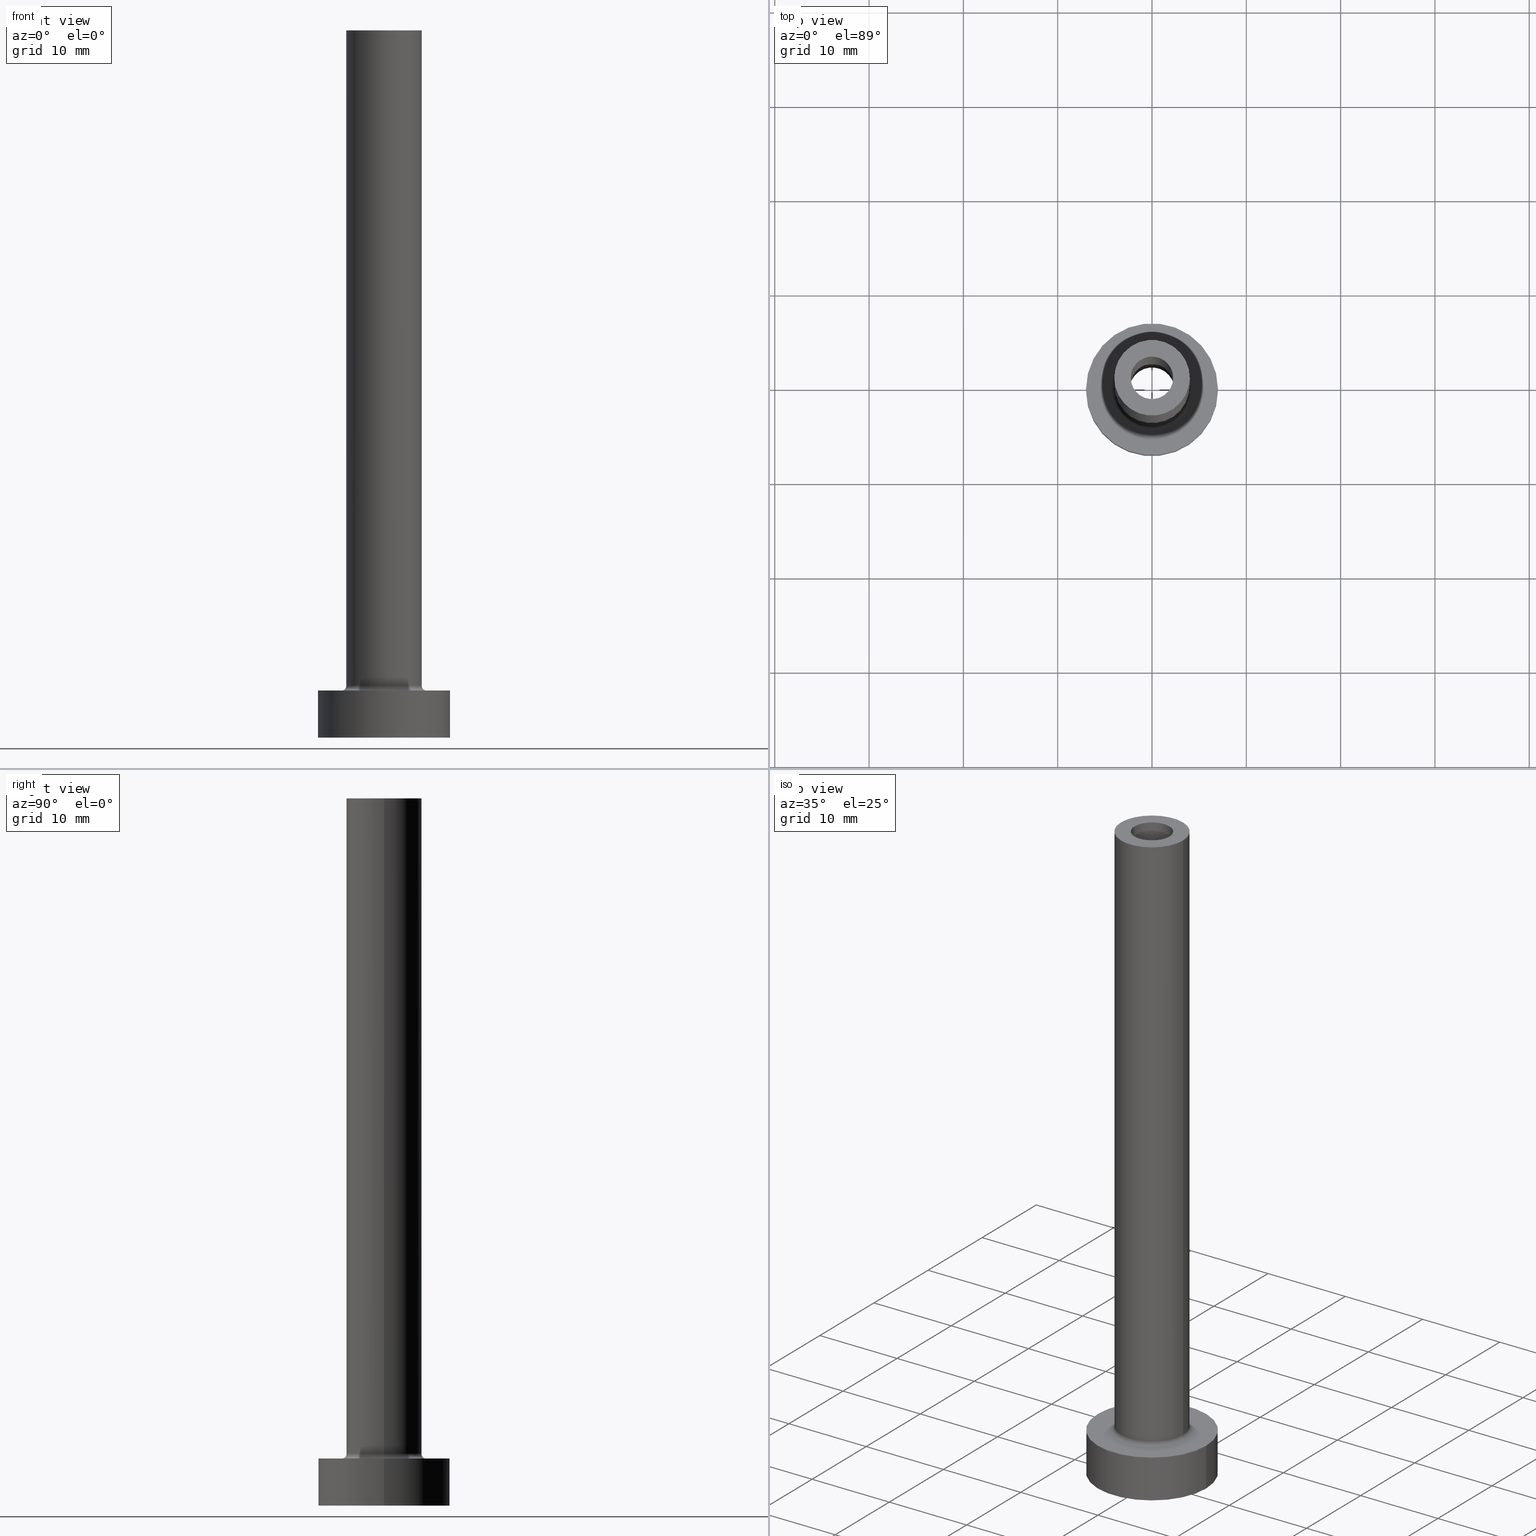
[diagram: canonical four-view strip — front | top / right | iso, engineering-drawing reading convention]
A machine part, canonical four-view strip (front | top / right | iso — engineering-drawing reading convention). The complete STEP part file that produces these views, byte-faithful:
ISO-10303-21;
HEADER;
FILE_DESCRIPTION (( 'STEP AP203' ),
    '1' );
FILE_NAME ('1f15.STEP',
    '2023-02-13T17:24:20',
    ( '' ),
    ( '' ),
    'SwSTEP 2.0',
    'SolidWorks 2019',
    '' );
FILE_SCHEMA (( 'CONFIG_CONTROL_DESIGN' ));
ENDSEC;

DATA;
#1 = DIRECTION ( 'NONE',  ( -1.000000000000000000, 0.000000000000000000, 0.000000000000000000 ) ) ;
#2 = CIRCLE ( 'NONE', #56, 4.500000000000000888 ) ;
#3 = ADVANCED_FACE ( 'NONE', ( #166 ), #420, .T. ) ;
#4 = AXIS2_PLACEMENT_3D ( 'NONE', #213, #167, #218 ) ;
#5 = EDGE_CURVE ( 'NONE', #383, #303, #319, .T. ) ;
#6 = AXIS2_PLACEMENT_3D ( 'NONE', #418, #35, #245 ) ;
#7 = VECTOR ( 'NONE', #99, 1000.000000000000000 ) ;
#8 = CARTESIAN_POINT ( 'NONE',  ( 0.000000000000000000, 0.000000000000000000, 75.00000000000001421 ) ) ;
#9 = DIRECTION ( 'NONE',  ( 0.000000000000000000, 0.000000000000000000, -1.000000000000000000 ) ) ;
#10 = PERSON_AND_ORGANIZATION ( #121, #96 ) ;
#11 = ADVANCED_FACE ( 'NONE', ( #162 ), #365, .F. ) ;
#12 = CARTESIAN_POINT ( 'NONE',  ( -4.500000000000000888, 5.510910596163089556E-16, 5.500000000000005329 ) ) ;
#13 = ORIENTED_EDGE ( 'NONE', *, *, #413, .T. ) ;
#14 = ORIENTED_EDGE ( 'NONE', *, *, #88, .F. ) ;
#15 = CIRCLE ( 'NONE', #217, 2.250000000000000000 ) ;
#16 = APPROVAL_STATUS ( 'not_yet_approved' ) ;
#17 = PLANE ( 'NONE',  #283 ) ;
#18 = ORIENTED_EDGE ( 'NONE', *, *, #169, .F. ) ;
#19 = DIRECTION ( 'NONE',  ( 1.000000000000000000, 0.000000000000000000, 0.000000000000000000 ) ) ;
#20 = APPLICATION_PROTOCOL_DEFINITION ( 'international standard', 'config_control_design', 1994, #91 ) ;
#21 = VECTOR ( 'NONE', #453, 1000.000000000000000 ) ;
#22 = VERTEX_POINT ( 'NONE', #377 ) ;
#23 = PERSON_AND_ORGANIZATION_ROLE ( 'design_owner' ) ;
#24 = CIRCLE ( 'NONE', #287, 4.000000000000000000 ) ;
#25 = ADVANCED_FACE ( 'NONE', ( #386 ), #372, .F. ) ;
#26 = CYLINDRICAL_SURFACE ( 'NONE', #437, 4.000000000000000000 ) ;
#27 = DIRECTION ( 'NONE',  ( -1.000000000000000000, 0.000000000000000000, 0.000000000000000000 ) ) ;
#28 = AXIS2_PLACEMENT_3D ( 'NONE', #267, #129, #231 ) ;
#29 = DIRECTION ( 'NONE',  ( 0.000000000000000000, 0.000000000000000000, 1.000000000000000000 ) ) ;
#30 = FACE_OUTER_BOUND ( 'NONE', #90, .T. ) ;
#31 = DIRECTION ( 'NONE',  ( 1.000000000000000000, 0.000000000000000000, 0.000000000000000000 ) ) ;
#32 = DIRECTION ( 'NONE',  ( 1.000000000000000000, 0.000000000000000000, 0.000000000000000000 ) ) ;
#33 = DATE_TIME_ROLE ( 'classification_date' ) ;
#34 = AXIS2_PLACEMENT_3D ( 'NONE', #12, #110, #426 ) ;
#35 = DIRECTION ( 'NONE',  ( 0.000000000000000000, 0.000000000000000000, 1.000000000000000000 ) ) ;
#36 = EDGE_LOOP ( 'NONE', ( #316, #13 ) ) ;
#37 = PERSON_AND_ORGANIZATION ( #121, #96 ) ;
#38 = EDGE_CURVE ( 'NONE', #336, #335, #199, .T. ) ;
#39 = CARTESIAN_POINT ( 'NONE',  ( -2.250000000000000000, 0.000000000000000000, 75.00000000000001421 ) ) ;
#40 = AXIS2_PLACEMENT_3D ( 'NONE', #82, #449, #446 ) ;
#41 = AXIS2_PLACEMENT_3D ( 'NONE', #439, #258, #184 ) ;
#42 = VERTEX_POINT ( 'NONE', #39 ) ;
#43 = EDGE_CURVE ( 'NONE', #42, #103, #15, .T. ) ;
#44 = DIRECTION ( 'NONE',  ( 0.000000000000000000, 0.000000000000000000, 1.000000000000000000 ) ) ;
#45 = CYLINDRICAL_SURFACE ( 'NONE', #81, 4.000000000000000000 ) ;
#46 = PERSON_AND_ORGANIZATION_ROLE ( 'classification_officer' ) ;
#47 = FACE_OUTER_BOUND ( 'NONE', #292, .T. ) ;
#48 = CIRCLE ( 'NONE', #205, 7.000000000000000000 ) ;
#49 = ORIENTED_EDGE ( 'NONE', *, *, #341, .F. ) ;
#50 = EDGE_CURVE ( 'NONE', #302, #445, #24, .T. ) ;
#51 = ORIENTED_EDGE ( 'NONE', *, *, #348, .F. ) ;
#52 = AXIS2_PLACEMENT_3D ( 'NONE', #97, #339, #86 ) ;
#53 = PERSON_AND_ORGANIZATION_ROLE ( 'creator' ) ;
#54 = ORIENTED_EDGE ( 'NONE', *, *, #195, .F. ) ;
#55 = VECTOR ( 'NONE', #415, 1000.000000000000000 ) ;
#56 = AXIS2_PLACEMENT_3D ( 'NONE', #270, #235, #347 ) ;
#57 = VERTEX_POINT ( 'NONE', #424 ) ;
#58 = CC_DESIGN_PERSON_AND_ORGANIZATION_ASSIGNMENT ( #307, #436, ( #375 ) ) ;
#59 = CARTESIAN_POINT ( 'NONE',  ( 0.000000000000000000, 0.000000000000000000, 5.000000000000000000 ) ) ;
#60 = CARTESIAN_POINT ( 'NONE',  ( 2.250000000000000000, 2.755455298081543792E-16, 75.00000000000001421 ) ) ;
#61 = VECTOR ( 'NONE', #410, 1000.000000000000000 ) ;
#62 = VECTOR ( 'NONE', #331, 1000.000000000000000 ) ;
#63 = ADVANCED_FACE ( 'NONE', ( #351, #346 ), #286, .F. ) ;
#64 = CARTESIAN_POINT ( 'NONE',  ( 0.000000000000000000, 0.000000000000000000, 0.000000000000000000 ) ) ;
#65 = SHAPE_DEFINITION_REPRESENTATION ( #243, #360 ) ;
#66 = LINE ( 'NONE', #427, #7 ) ;
#67 = DIRECTION ( 'NONE',  ( 1.000000000000000000, 0.000000000000000000, 0.000000000000000000 ) ) ;
#68 = DIRECTION ( 'NONE',  ( 0.000000000000000000, 0.000000000000000000, -1.000000000000000000 ) ) ;
#69 = ORIENTED_EDGE ( 'NONE', *, *, #329, .F. ) ;
#70 = EDGE_CURVE ( 'NONE', #445, #302, #261, .T. ) ;
#71 = COORDINATED_UNIVERSAL_TIME_OFFSET ( 1, 0, .AHEAD. ) ;
#72 = AXIS2_PLACEMENT_3D ( 'NONE', #164, #306, #122 ) ;
#73 = APPROVAL_ROLE ( '' ) ;
#74 = VECTOR ( 'NONE', #380, 1000.000000000000000 ) ;
#75 = FACE_OUTER_BOUND ( 'NONE', #308, .T. ) ;
#76 = ORIENTED_EDGE ( 'NONE', *, *, #268, .T. ) ;
#77 = PERSON_AND_ORGANIZATION_ROLE ( 'design_supplier' ) ;
#78 = LINE ( 'NONE', #109, #74 ) ;
#79 = APPROVAL_DATE_TIME ( #406, #395 ) ;
#80 = CARTESIAN_POINT ( 'NONE',  ( 2.399999999999999911, 2.939152317953647106E-16, 30.00000000000001421 ) ) ;
#81 = AXIS2_PLACEMENT_3D ( 'NONE', #125, #285, #201 ) ;
#82 = CARTESIAN_POINT ( 'NONE',  ( 0.000000000000000000, 0.000000000000000000, 36.78822509939086416 ) ) ;
#83 = ADVANCED_FACE ( 'NONE', ( #412 ), #45, .T. ) ;
#84 = CC_DESIGN_DATE_AND_TIME_ASSIGNMENT ( #359, #33, ( #87 ) ) ;
#85 = VERTEX_POINT ( 'NONE', #392 ) ;
#86 = DIRECTION ( 'NONE',  ( 1.000000000000000000, 0.000000000000000000, 0.000000000000000000 ) ) ;
#87 = SECURITY_CLASSIFICATION ( '', '', #222 ) ;
#88 = EDGE_CURVE ( 'NONE', #303, #383, #293, .T. ) ;
#89 = CARTESIAN_POINT ( 'NONE',  ( 0.000000000000000000, 0.000000000000000000, 30.00000000000001421 ) ) ;
#90 = EDGE_LOOP ( 'NONE', ( #194, #361 ) ) ;
#91 = APPLICATION_CONTEXT ( 'configuration controlled 3d designs of mechanical parts and assemblies' ) ;
#92 = CARTESIAN_POINT ( 'NONE',  ( 7.000000000000000000, 8.572527594031473190E-16, 5.000000000000000000 ) ) ;
#93 = FACE_OUTER_BOUND ( 'NONE', #343, .T. ) ;
#94 = EDGE_LOOP ( 'NONE', ( #414, #269, #187, #179 ) ) ;
#95 = AXIS2_PLACEMENT_3D ( 'NONE', #322, #441, #224 ) ;
#96 = ORGANIZATION ( 'NEUR�EN�', 'NEUR�EN�', '' ) ;
#97 = CARTESIAN_POINT ( 'NONE',  ( 0.000000000000000000, 0.000000000000000000, 5.500000000000005329 ) ) ;
#98 = EDGE_CURVE ( 'NONE', #402, #225, #196, .T. ) ;
#99 = DIRECTION ( 'NONE',  ( 0.000000000000000000, 0.000000000000000000, -1.000000000000000000 ) ) ;
#100 = DIRECTION ( 'NONE',  ( 0.000000000000000000, 0.000000000000000000, 1.000000000000000000 ) ) ;
#101 = CC_DESIGN_APPROVAL ( #291, ( #87 ) ) ;
#102 = LINE ( 'NONE', #254, #62 ) ;
#103 = VERTEX_POINT ( 'NONE', #60 ) ;
#104 = AXIS2_PLACEMENT_3D ( 'NONE', #165, #390, #175 ) ;
#105 = CC_DESIGN_APPROVAL ( #296, ( #178 ) ) ;
#106 = CARTESIAN_POINT ( 'NONE',  ( 2.399999999999999911, 2.939152317953647106E-16, 36.78822509939086416 ) ) ;
#107 = MANIFOLD_SOLID_BREP ( 'Odebrat vysunut�m4', #461 ) ;
#108 = APPROVAL_DATE_TIME ( #145, #296 ) ;
#109 = CARTESIAN_POINT ( 'NONE',  ( 4.000000000000000000, 4.898587196589412829E-16, 75.00000000000001421 ) ) ;
#110 = DIRECTION ( 'NONE',  ( 1.224646799147353207E-16, 1.000000000000000000, -0.000000000000000000 ) ) ;
#111 = ADVANCED_FACE ( 'NONE', ( #93 ), #389, .T. ) ;
#112 = COORDINATED_UNIVERSAL_TIME_OFFSET ( 1, 0, .AHEAD. ) ;
#113 = FACE_OUTER_BOUND ( 'NONE', #456, .T. ) ;
#114 = ORIENTED_EDGE ( 'NONE', *, *, #173, .F. ) ;
#115 = PERSON_AND_ORGANIZATION ( #121, #96 ) ;
#116 = APPROVAL_ROLE ( '' ) ;
#117 = APPROVAL_PERSON_ORGANIZATION ( #259, #395, #116 ) ;
#118 = DIRECTION ( 'NONE',  ( 0.000000000000000000, 0.000000000000000000, 1.000000000000000000 ) ) ;
#119 = APPROVAL_PERSON_ORGANIZATION ( #312, #296, #448 ) ;
#120 = ORIENTED_EDGE ( 'NONE', *, *, #433, .T. ) ;
#121 = PERSON ( 'NEUR�EN�', 'NEUR�EN�', 'NEUR�EN�', ('NEUR�EN�'), ('NEUR�EN�'), ('NEUR�EN�') ) ;
#122 = DIRECTION ( 'NONE',  ( 1.000000000000000000, 0.000000000000000000, 0.000000000000000000 ) ) ;
#123 = COORDINATED_UNIVERSAL_TIME_OFFSET ( 1, 0, .AHEAD. ) ;
#124 = ORIENTED_EDGE ( 'NONE', *, *, #246, .F. ) ;
#125 = CARTESIAN_POINT ( 'NONE',  ( 0.000000000000000000, 0.000000000000000000, 75.00000000000001421 ) ) ;
#126 = CC_DESIGN_DATE_AND_TIME_ASSIGNMENT ( #191, #264, ( #178 ) ) ;
#127 = ORIENTED_EDGE ( 'NONE', *, *, #173, .T. ) ;
#128 = DIRECTION ( 'NONE',  ( 1.000000000000000000, 0.000000000000000000, 0.000000000000000000 ) ) ;
#129 = DIRECTION ( 'NONE',  ( 0.000000000000000000, 0.000000000000000000, 1.000000000000000000 ) ) ;
#130 = AXIS2_PLACEMENT_3D ( 'NONE', #59, #133, #200 ) ;
#131 = EDGE_LOOP ( 'NONE', ( #14, #148, #152, #408 ) ) ;
#132 = DIRECTION ( 'NONE',  ( 0.000000000000000000, 0.000000000000000000, 1.000000000000000000 ) ) ;
#133 = DIRECTION ( 'NONE',  ( 0.000000000000000000, 0.000000000000000000, 1.000000000000000000 ) ) ;
#134 = FACE_BOUND ( 'NONE', #305, .T. ) ;
#135 = ADVANCED_FACE ( 'NONE', ( #134, #30 ), #281, .F. ) ;
#136 = CARTESIAN_POINT ( 'NONE',  ( 0.000000000000000000, 0.000000000000000000, 0.000000000000000000 ) ) ;
#137 = PRODUCT ( '1f15', '1f15', '', ( #373 ) ) ;
#138 = AXIS2_PLACEMENT_3D ( 'NONE', #64, #208, #429 ) ;
#139 = DIRECTION ( 'NONE',  ( -0.000000000000000000, -0.000000000000000000, -1.000000000000000000 ) ) ;
#140 = DIRECTION ( 'NONE',  ( 0.000000000000000000, 0.000000000000000000, 1.000000000000000000 ) ) ;
#141 = VECTOR ( 'NONE', #396, 1000.000000000000000 ) ;
#142 = EDGE_CURVE ( 'NONE', #383, #85, #387, .T. ) ;
#143 = CYLINDRICAL_SURFACE ( 'NONE', #226, 2.399999999999999911 ) ;
#144 = ORIENTED_EDGE ( 'NONE', *, *, #348, .T. ) ;
#145 = DATE_AND_TIME ( #183, #185 ) ;
#146 = AXIS2_PLACEMENT_3D ( 'NONE', #136, #139, #393 ) ;
#147 = CIRCLE ( 'NONE', #130, 7.000000000000000000 ) ;
#148 = ORIENTED_EDGE ( 'NONE', *, *, #364, .T. ) ;
#149 = ORIENTED_EDGE ( 'NONE', *, *, #43, .F. ) ;
#150 = COORDINATED_UNIVERSAL_TIME_OFFSET ( 1, 0, .AHEAD. ) ;
#151 = ORIENTED_EDGE ( 'NONE', *, *, #160, .F. ) ;
#152 = ORIENTED_EDGE ( 'NONE', *, *, #274, .F. ) ;
#153 = ORIENTED_EDGE ( 'NONE', *, *, #257, .T. ) ;
#154 = CIRCLE ( 'NONE', #146, 2.399999999999999911 ) ;
#155 = APPROVAL_PERSON_ORGANIZATION ( #37, #291, #73 ) ;
#156 = CARTESIAN_POINT ( 'NONE',  ( -2.399999999999999911, 0.000000000000000000, 0.000000000000000000 ) ) ;
#157 = ORIENTED_EDGE ( 'NONE', *, *, #160, .T. ) ;
#158 =( NAMED_UNIT ( * ) SI_UNIT ( $, .STERADIAN. ) SOLID_ANGLE_UNIT ( ) );
#159 = ORIENTED_EDGE ( 'NONE', *, *, #252, .T. ) ;
#160 = EDGE_CURVE ( 'NONE', #273, #299, #177, .T. ) ;
#161 = AXIS2_PLACEMENT_3D ( 'NONE', #278, #100, #250 ) ;
#162 = FACE_OUTER_BOUND ( 'NONE', #94, .T. ) ;
#163 = EDGE_LOOP ( 'NONE', ( #411, #127, #151, #405 ) ) ;
#164 = CARTESIAN_POINT ( 'NONE',  ( 0.000000000000000000, 0.000000000000000000, 75.00000000000001421 ) ) ;
#165 = CARTESIAN_POINT ( 'NONE',  ( 0.000000000000000000, 0.000000000000000000, 5.000000000000000000 ) ) ;
#166 = FACE_OUTER_BOUND ( 'NONE', #193, .T. ) ;
#167 = DIRECTION ( 'NONE',  ( 0.000000000000000000, 0.000000000000000000, 1.000000000000000000 ) ) ;
#168 = AXIS2_PLACEMENT_3D ( 'NONE', #181, #9, #459 ) ;
#169 = EDGE_CURVE ( 'NONE', #335, #251, #271, .T. ) ;
#170 = CARTESIAN_POINT ( 'NONE',  ( 2.399999999999999911, 2.939152317953647106E-16, 0.000000000000000000 ) ) ;
#171 = LINE ( 'NONE', #289, #388 ) ;
#172 = CIRCLE ( 'NONE', #277, 2.250000000000000000 ) ;
#173 = EDGE_CURVE ( 'NONE', #103, #299, #328, .T. ) ;
#174 = APPROVAL_STATUS ( 'not_yet_approved' ) ;
#175 = DIRECTION ( 'NONE',  ( 1.000000000000000000, 0.000000000000000000, 0.000000000000000000 ) ) ;
#176 = FACE_OUTER_BOUND ( 'NONE', #163, .T. ) ;
#177 = CIRCLE ( 'NONE', #275, 2.250000000000000000 ) ;
#178 = PRODUCT_DEFINITION ( 'NEZN�M�', '', #375, #416 ) ;
#179 = ORIENTED_EDGE ( 'NONE', *, *, #252, .F. ) ;
#180 = ORIENTED_EDGE ( 'NONE', *, *, #38, .T. ) ;
#181 = CARTESIAN_POINT ( 'NONE',  ( 0.000000000000000000, 0.000000000000000000, 75.00000000000001421 ) ) ;
#182 = ORIENTED_EDGE ( 'NONE', *, *, #284, .F. ) ;
#183 = CALENDAR_DATE ( 2023, 13, 2 ) ;
#184 = DIRECTION ( 'NONE',  ( 1.000000000000000000, 0.000000000000000000, 0.000000000000000000 ) ) ;
#185 = LOCAL_TIME ( 18, 24, 20.00000000000000000, #123 ) ;
#186 = PRODUCT_RELATED_PRODUCT_CATEGORY ( 'detail', '', ( #137 ) ) ;
#187 = ORIENTED_EDGE ( 'NONE', *, *, #142, .T. ) ;
#188 = LINE ( 'NONE', #298, #141 ) ;
#189 = ORIENTED_EDGE ( 'NONE', *, *, #288, .T. ) ;
#190 = ORIENTED_EDGE ( 'NONE', *, *, #268, .F. ) ;
#191 = DATE_AND_TIME ( #300, #323 ) ;
#192 = CARTESIAN_POINT ( 'NONE',  ( 0.000000000000000000, 0.000000000000000000, 5.000000000000000000 ) ) ;
#193 = EDGE_LOOP ( 'NONE', ( #417, #332, #290, #54 ) ) ;
#194 = ORIENTED_EDGE ( 'NONE', *, *, #404, .F. ) ;
#195 = EDGE_CURVE ( 'NONE', #22, #225, #444, .T. ) ;
#196 = CIRCLE ( 'NONE', #214, 7.000000000000000000 ) ;
#197 = VERTEX_POINT ( 'NONE', #156 ) ;
#198 = PLANE ( 'NONE',  #362 ) ;
#199 = CIRCLE ( 'NONE', #223, 2.399999999999999911 ) ;
#200 = DIRECTION ( 'NONE',  ( 1.000000000000000000, 0.000000000000000000, 0.000000000000000000 ) ) ;
#201 = DIRECTION ( 'NONE',  ( -1.000000000000000000, 0.000000000000000000, 0.000000000000000000 ) ) ;
#202 = ADVANCED_FACE ( 'NONE', ( #315, #47 ), #198, .T. ) ;
#203 = DIRECTION ( 'NONE',  ( -0.000000000000000000, -0.000000000000000000, -1.000000000000000000 ) ) ;
#204 = DIRECTION ( 'NONE',  ( -1.000000000000000000, 0.000000000000000000, 0.000000000000000000 ) ) ;
#205 = AXIS2_PLACEMENT_3D ( 'NONE', #425, #460, #247 ) ;
#206 = DIRECTION ( 'NONE',  ( 1.000000000000000000, 0.000000000000000000, 0.000000000000000000 ) ) ;
#207 = CARTESIAN_POINT ( 'NONE',  ( 0.000000000000000000, 0.000000000000000000, 5.000000000000000000 ) ) ;
#208 = DIRECTION ( 'NONE',  ( 0.000000000000000000, 0.000000000000000000, 1.000000000000000000 ) ) ;
#209 = DIRECTION ( 'NONE',  ( 0.000000000000000000, 0.000000000000000000, 1.000000000000000000 ) ) ;
#210 = CARTESIAN_POINT ( 'NONE',  ( 0.000000000000000000, 0.000000000000000000, 75.00000000000001421 ) ) ;
#211 = DIRECTION ( 'NONE',  ( 1.000000000000000000, 0.000000000000000000, -0.000000000000000000 ) ) ;
#212 = CC_DESIGN_PERSON_AND_ORGANIZATION_ASSIGNMENT ( #403, #53, ( #178 ) ) ;
#213 = CARTESIAN_POINT ( 'NONE',  ( 0.000000000000000000, 0.000000000000000000, 30.00000000000001421 ) ) ;
#214 = AXIS2_PLACEMENT_3D ( 'NONE', #276, #421, #67 ) ;
#215 = EDGE_LOOP ( 'NONE', ( #253, #153, #342, #69 ) ) ;
#216 = DIRECTION ( 'NONE',  ( 1.000000000000000000, 0.000000000000000000, 0.000000000000000000 ) ) ;
#217 = AXIS2_PLACEMENT_3D ( 'NONE', #325, #44, #301 ) ;
#218 = DIRECTION ( 'NONE',  ( 1.000000000000000000, 0.000000000000000000, -0.000000000000000000 ) ) ;
#219 = DATE_AND_TIME ( #431, #356 ) ;
#220 = CC_DESIGN_APPROVAL ( #395, ( #375 ) ) ;
#221 = ORIENTED_EDGE ( 'NONE', *, *, #450, .F. ) ;
#222 = SECURITY_CLASSIFICATION_LEVEL ( 'unclassified' ) ;
#223 = AXIS2_PLACEMENT_3D ( 'NONE', #89, #140, #216 ) ;
#224 = DIRECTION ( 'NONE',  ( 0.000000000000000000, 0.000000000000000000, -1.000000000000000000 ) ) ;
#225 = VERTEX_POINT ( 'NONE', #260 ) ;
#226 = AXIS2_PLACEMENT_3D ( 'NONE', #294, #401, #440 ) ;
#227 = CALENDAR_DATE ( 2023, 13, 2 ) ;
#228 = FACE_BOUND ( 'NONE', #238, .T. ) ;
#229 = ADVANCED_FACE ( 'NONE', ( #113 ), #407, .F. ) ;
#230 = ORIENTED_EDGE ( 'NONE', *, *, #304, .T. ) ;
#231 = DIRECTION ( 'NONE',  ( 1.000000000000000000, 0.000000000000000000, 0.000000000000000000 ) ) ;
#232 = ORIENTED_EDGE ( 'NONE', *, *, #257, .F. ) ;
#233 = DIRECTION ( 'NONE',  ( 0.000000000000000000, 0.000000000000000000, 1.000000000000000000 ) ) ;
#234 = CIRCLE ( 'NONE', #34, 0.5000000000000004441 ) ;
#235 = DIRECTION ( 'NONE',  ( -0.000000000000000000, -0.000000000000000000, -1.000000000000000000 ) ) ;
#236 = ADVANCED_FACE ( 'NONE', ( #228, #370 ), #17, .T. ) ;
#237 = DIRECTION ( 'NONE',  ( 0.000000000000000000, 0.000000000000000000, 1.000000000000000000 ) ) ;
#238 = EDGE_LOOP ( 'NONE', ( #314, #159 ) ) ;
#239 = AXIS2_PLACEMENT_3D ( 'NONE', #207, #350, #27 ) ;
#240 = CARTESIAN_POINT ( 'NONE',  ( 0.000000000000000000, 0.000000000000000000, 5.500000000000005329 ) ) ;
#241 = DIRECTION ( 'NONE',  ( 1.000000000000000000, 0.000000000000000000, 0.000000000000000000 ) ) ;
#242 = AXIS2_PLACEMENT_3D ( 'NONE', #282, #349, #31 ) ;
#243 = PRODUCT_DEFINITION_SHAPE ( 'NONE', 'NONE',  #178 ) ;
#244 = CARTESIAN_POINT ( 'NONE',  ( 2.250000000000000000, 2.755455298081543792E-16, 30.00000000000001421 ) ) ;
#245 = DIRECTION ( 'NONE',  ( 1.000000000000000000, 0.000000000000000000, 0.000000000000000000 ) ) ;
#246 = EDGE_CURVE ( 'NONE', #197, #251, #154, .T. ) ;
#247 = DIRECTION ( 'NONE',  ( 1.000000000000000000, 0.000000000000000000, 0.000000000000000000 ) ) ;
#248 = APPROVAL_DATE_TIME ( #219, #291 ) ;
#249 = FACE_OUTER_BOUND ( 'NONE', #330, .T. ) ;
#250 = DIRECTION ( 'NONE',  ( 1.000000000000000000, 0.000000000000000000, 0.000000000000000000 ) ) ;
#251 = VERTEX_POINT ( 'NONE', #170 ) ;
#252 = EDGE_CURVE ( 'NONE', #57, #85, #457, .T. ) ;
#253 = ORIENTED_EDGE ( 'NONE', *, *, #70, .F. ) ;
#254 = CARTESIAN_POINT ( 'NONE',  ( 7.000000000000000000, 8.572527594031473190E-16, 5.000000000000000000 ) ) ;
#255 = AXIS2_PLACEMENT_3D ( 'NONE', #345, #29, #206 ) ;
#256 = ORIENTED_EDGE ( 'NONE', *, *, #88, .T. ) ;
#257 = EDGE_CURVE ( 'NONE', #445, #383, #78, .T. ) ;
#258 = DIRECTION ( 'NONE',  ( 0.000000000000000000, 0.000000000000000000, 1.000000000000000000 ) ) ;
#259 = PERSON_AND_ORGANIZATION ( #121, #96 ) ;
#260 = CARTESIAN_POINT ( 'NONE',  ( -7.000000000000000000, 0.000000000000000000, 0.000000000000000000 ) ) ;
#261 = CIRCLE ( 'NONE', #72, 4.000000000000000000 ) ;
#262 = CARTESIAN_POINT ( 'NONE',  ( 2.250000000000000000, 2.755455298081543792E-16, 75.00000000000001421 ) ) ;
#263 = CC_DESIGN_PERSON_AND_ORGANIZATION_ASSIGNMENT ( #367, #46, ( #87 ) ) ;
#264 = DATE_TIME_ROLE ( 'creation_date' ) ;
#265 = CIRCLE ( 'NONE', #242, 2.399999999999999911 ) ;
#266 = ORIENTED_EDGE ( 'NONE', *, *, #50, .T. ) ;
#267 = CARTESIAN_POINT ( 'NONE',  ( 0.000000000000000000, 0.000000000000000000, 0.000000000000000000 ) ) ;
#268 = EDGE_CURVE ( 'NONE', #299, #273, #172, .T. ) ;
#269 = ORIENTED_EDGE ( 'NONE', *, *, #5, .F. ) ;
#270 = CARTESIAN_POINT ( 'NONE',  ( 0.000000000000000000, 0.000000000000000000, 5.000000000000000000 ) ) ;
#271 = LINE ( 'NONE', #106, #55 ) ;
#272 = APPROVAL_STATUS ( 'not_yet_approved' ) ;
#273 = VERTEX_POINT ( 'NONE', #384 ) ;
#274 = EDGE_CURVE ( 'NONE', #85, #57, #2, .T. ) ;
#275 = AXIS2_PLACEMENT_3D ( 'NONE', #452, #311, #19 ) ;
#276 = CARTESIAN_POINT ( 'NONE',  ( 0.000000000000000000, 0.000000000000000000, 0.000000000000000000 ) ) ;
#277 = AXIS2_PLACEMENT_3D ( 'NONE', #398, #209, #32 ) ;
#278 = CARTESIAN_POINT ( 'NONE',  ( 0.000000000000000000, 0.000000000000000000, 5.500000000000005329 ) ) ;
#279 =( NAMED_UNIT ( * ) PLANE_ANGLE_UNIT ( ) SI_UNIT ( $, .RADIAN. ) );
#280 = AXIS2_PLACEMENT_3D ( 'NONE', #240, #233, #128 ) ;
#281 = PLANE ( 'NONE',  #138 ) ;
#282 = CARTESIAN_POINT ( 'NONE',  ( 0.000000000000000000, 0.000000000000000000, 0.000000000000000000 ) ) ;
#283 = AXIS2_PLACEMENT_3D ( 'NONE', #192, #118, #211 ) ;
#284 = EDGE_CURVE ( 'NONE', #251, #197, #265, .T. ) ;
#285 = DIRECTION ( 'NONE',  ( -0.000000000000000000, -0.000000000000000000, -1.000000000000000000 ) ) ;
#286 = PLANE ( 'NONE',  #4 ) ;
#287 = AXIS2_PLACEMENT_3D ( 'NONE', #374, #237, #241 ) ;
#288 = EDGE_CURVE ( 'NONE', #42, #273, #171, .T. ) ;
#289 = CARTESIAN_POINT ( 'NONE',  ( -2.250000000000000000, 0.000000000000000000, 75.00000000000001421 ) ) ;
#290 = ORIENTED_EDGE ( 'NONE', *, *, #98, .T. ) ;
#291 = APPROVAL ( #174, 'NEUR�EN�' ) ;
#292 = EDGE_LOOP ( 'NONE', ( #266, #313 ) ) ;
#293 = CIRCLE ( 'NONE', #6, 4.000000000000000000 ) ;
#294 = CARTESIAN_POINT ( 'NONE',  ( 0.000000000000000000, 0.000000000000000000, 36.78822509939086416 ) ) ;
#295 = COORDINATED_UNIVERSAL_TIME_OFFSET ( 1, 0, .AHEAD. ) ;
#296 = APPROVAL ( #272, 'NEUR�EN�' ) ;
#297 = AXIS2_PLACEMENT_3D ( 'NONE', #352, #132, #423 ) ;
#298 = CARTESIAN_POINT ( 'NONE',  ( -4.000000000000000000, 0.000000000000000000, 75.00000000000001421 ) ) ;
#299 = VERTEX_POINT ( 'NONE', #244 ) ;
#300 = CALENDAR_DATE ( 2023, 13, 2 ) ;
#301 = DIRECTION ( 'NONE',  ( 1.000000000000000000, 0.000000000000000000, 0.000000000000000000 ) ) ;
#302 = VERTEX_POINT ( 'NONE', #428 ) ;
#303 = VERTEX_POINT ( 'NONE', #391 ) ;
#304 = EDGE_CURVE ( 'NONE', #336, #197, #66, .T. ) ;
#305 = EDGE_LOOP ( 'NONE', ( #124, #182 ) ) ;
#306 = DIRECTION ( 'NONE',  ( 0.000000000000000000, 0.000000000000000000, 1.000000000000000000 ) ) ;
#307 = PERSON_AND_ORGANIZATION ( #121, #96 ) ;
#308 = EDGE_LOOP ( 'NONE', ( #114, #144, #189, #190 ) ) ;
#309 = AXIS2_PLACEMENT_3D ( 'NONE', #8, #68, #1 ) ;
#310 = ORIENTED_EDGE ( 'NONE', *, *, #304, .F. ) ;
#311 = DIRECTION ( 'NONE',  ( 0.000000000000000000, 0.000000000000000000, 1.000000000000000000 ) ) ;
#312 = PERSON_AND_ORGANIZATION ( #121, #96 ) ;
#313 = ORIENTED_EDGE ( 'NONE', *, *, #70, .T. ) ;
#314 = ORIENTED_EDGE ( 'NONE', *, *, #274, .T. ) ;
#315 = FACE_BOUND ( 'NONE', #397, .T. ) ;
#316 = ORIENTED_EDGE ( 'NONE', *, *, #450, .T. ) ;
#317 = DIRECTION ( 'NONE',  ( -0.000000000000000000, -0.000000000000000000, -1.000000000000000000 ) ) ;
#318 = APPLICATION_CONTEXT ( 'configuration controlled 3d designs of mechanical parts and assemblies' ) ;
#319 = CIRCLE ( 'NONE', #52, 4.000000000000000000 ) ;
#320 = DIRECTION ( 'NONE',  ( 0.000000000000000000, 0.000000000000000000, -1.000000000000000000 ) ) ;
#321 = ORIENTED_EDGE ( 'NONE', *, *, #246, .T. ) ;
#322 = CARTESIAN_POINT ( 'NONE',  ( 4.500000000000000888, 0.000000000000000000, 5.500000000000005329 ) ) ;
#323 = LOCAL_TIME ( 18, 24, 20.00000000000000000, #112 ) ;
#324 = CIRCLE ( 'NONE', #297, 2.399999999999999911 ) ;
#325 = CARTESIAN_POINT ( 'NONE',  ( 0.000000000000000000, 0.000000000000000000, 75.00000000000001421 ) ) ;
#326 = ORIENTED_EDGE ( 'NONE', *, *, #404, .T. ) ;
#327 = ADVANCED_FACE ( 'NONE', ( #249 ), #143, .F. ) ;
#328 = LINE ( 'NONE', #262, #21 ) ;
#329 = EDGE_CURVE ( 'NONE', #302, #303, #188, .T. ) ;
#330 = EDGE_LOOP ( 'NONE', ( #18, #120, #230, #321 ) ) ;
#331 = DIRECTION ( 'NONE',  ( -0.000000000000000000, -0.000000000000000000, -1.000000000000000000 ) ) ;
#332 = ORIENTED_EDGE ( 'NONE', *, *, #341, .T. ) ;
#333 = EDGE_LOOP ( 'NONE', ( #232, #451, #371, #256 ) ) ;
#334 = DIRECTION ( 'NONE',  ( 0.000000000000000000, 0.000000000000000000, 1.000000000000000000 ) ) ;
#335 = VERTEX_POINT ( 'NONE', #80 ) ;
#336 = VERTEX_POINT ( 'NONE', #369 ) ;
#337 = EDGE_LOOP ( 'NONE', ( #157, #76 ) ) ;
#338 = LOCAL_TIME ( 18, 24, 20.00000000000000000, #150 ) ;
#339 = DIRECTION ( 'NONE',  ( 0.000000000000000000, 0.000000000000000000, 1.000000000000000000 ) ) ;
#340 = CARTESIAN_POINT ( 'NONE',  ( 0.000000000000000000, 0.000000000000000000, 75.00000000000001421 ) ) ;
#341 = EDGE_CURVE ( 'NONE', #442, #402, #102, .T. ) ;
#342 = ORIENTED_EDGE ( 'NONE', *, *, #5, .T. ) ;
#343 = EDGE_LOOP ( 'NONE', ( #49, #221, #443, #326 ) ) ;
#344 = FACE_OUTER_BOUND ( 'NONE', #215, .T. ) ;
#345 = CARTESIAN_POINT ( 'NONE',  ( 0.000000000000000000, 0.000000000000000000, 5.000000000000000000 ) ) ;
#346 = FACE_OUTER_BOUND ( 'NONE', #379, .T. ) ;
#347 = DIRECTION ( 'NONE',  ( 1.000000000000000000, 0.000000000000000000, 0.000000000000000000 ) ) ;
#348 = EDGE_CURVE ( 'NONE', #103, #42, #368, .T. ) ;
#349 = DIRECTION ( 'NONE',  ( -0.000000000000000000, -0.000000000000000000, -1.000000000000000000 ) ) ;
#350 = DIRECTION ( 'NONE',  ( -0.000000000000000000, -0.000000000000000000, -1.000000000000000000 ) ) ;
#351 = FACE_BOUND ( 'NONE', #337, .T. ) ;
#352 = CARTESIAN_POINT ( 'NONE',  ( 0.000000000000000000, 0.000000000000000000, 30.00000000000001421 ) ) ;
#353 =( LENGTH_UNIT ( ) NAMED_UNIT ( * ) SI_UNIT ( .MILLI., .METRE. ) );
#354 = AXIS2_PLACEMENT_3D ( 'NONE', #382, #317, #204 ) ;
#355 = CC_DESIGN_PERSON_AND_ORGANIZATION_ASSIGNMENT ( #115, #23, ( #137 ) ) ;
#356 = LOCAL_TIME ( 18, 24, 20.00000000000000000, #71 ) ;
#357 = UNCERTAINTY_MEASURE_WITH_UNIT (LENGTH_MEASURE( 1.000000000000000082E-05 ), #353, 'distance_accuracy_value', 'NONE');
#358 = ORIENTED_EDGE ( 'NONE', *, *, #169, .T. ) ;
#359 = DATE_AND_TIME ( #434, #338 ) ;
#360 = ADVANCED_BREP_SHAPE_REPRESENTATION ( '1f15', ( #107, #28 ), #430 ) ;
#361 = ORIENTED_EDGE ( 'NONE', *, *, #98, .F. ) ;
#362 = AXIS2_PLACEMENT_3D ( 'NONE', #340, #334, #455 ) ;
#363 = LOCAL_TIME ( 18, 24, 20.00000000000000000, #295 ) ;
#364 = EDGE_CURVE ( 'NONE', #303, #57, #234, .T. ) ;
#365 = TOROIDAL_SURFACE ( 'NONE', #280, 4.500000000000000888, 0.5000000000000000000 ) ;
#366 = CYLINDRICAL_SURFACE ( 'NONE', #168, 2.250000000000000000 ) ;
#367 = PERSON_AND_ORGANIZATION ( #121, #96 ) ;
#368 = CIRCLE ( 'NONE', #41, 2.250000000000000000 ) ;
#369 = CARTESIAN_POINT ( 'NONE',  ( -2.399999999999999911, 0.000000000000000000, 30.00000000000001421 ) ) ;
#370 = FACE_OUTER_BOUND ( 'NONE', #36, .T. ) ;
#371 = ORIENTED_EDGE ( 'NONE', *, *, #329, .T. ) ;
#372 = TOROIDAL_SURFACE ( 'NONE', #161, 4.500000000000000888, 0.5000000000000000000 ) ;
#373 = MECHANICAL_CONTEXT ( 'NONE', #318, 'mechanical' ) ;
#374 = CARTESIAN_POINT ( 'NONE',  ( 0.000000000000000000, 0.000000000000000000, 75.00000000000001421 ) ) ;
#375 = PRODUCT_DEFINITION_FORMATION_WITH_SPECIFIED_SOURCE ( 'LIBOVOLN�', '', #137, .NOT_KNOWN. ) ;
#376 = ADVANCED_FACE ( 'NONE', ( #176 ), #394, .F. ) ;
#377 = CARTESIAN_POINT ( 'NONE',  ( -7.000000000000000000, 0.000000000000000000, 5.000000000000000000 ) ) ;
#378 = CARTESIAN_POINT ( 'NONE',  ( -7.000000000000000000, 0.000000000000000000, 5.000000000000000000 ) ) ;
#379 = EDGE_LOOP ( 'NONE', ( #447, #454 ) ) ;
#380 = DIRECTION ( 'NONE',  ( -0.000000000000000000, -0.000000000000000000, -1.000000000000000000 ) ) ;
#381 = CARTESIAN_POINT ( 'NONE',  ( 7.000000000000000000, 8.572527594031473190E-16, 0.000000000000000000 ) ) ;
#382 = CARTESIAN_POINT ( 'NONE',  ( 0.000000000000000000, 0.000000000000000000, 5.000000000000000000 ) ) ;
#383 = VERTEX_POINT ( 'NONE', #435 ) ;
#384 = CARTESIAN_POINT ( 'NONE',  ( -2.250000000000000000, 0.000000000000000000, 30.00000000000001421 ) ) ;
#385 = CARTESIAN_POINT ( 'NONE',  ( 4.000000000000000000, 4.898587196589412829E-16, 75.00000000000001421 ) ) ;
#386 = FACE_OUTER_BOUND ( 'NONE', #131, .T. ) ;
#387 = CIRCLE ( 'NONE', #95, 0.5000000000000004441 ) ;
#388 = VECTOR ( 'NONE', #320, 1000.000000000000000 ) ;
#389 = CYLINDRICAL_SURFACE ( 'NONE', #354, 7.000000000000000000 ) ;
#390 = DIRECTION ( 'NONE',  ( -0.000000000000000000, -0.000000000000000000, -1.000000000000000000 ) ) ;
#391 = CARTESIAN_POINT ( 'NONE',  ( -4.000000000000000000, 0.000000000000000000, 5.500000000000005329 ) ) ;
#392 = CARTESIAN_POINT ( 'NONE',  ( 4.500000000000000888, 0.000000000000000000, 5.000000000000002665 ) ) ;
#393 = DIRECTION ( 'NONE',  ( 1.000000000000000000, 0.000000000000000000, 0.000000000000000000 ) ) ;
#394 = CYLINDRICAL_SURFACE ( 'NONE', #309, 2.250000000000000000 ) ;
#395 = APPROVAL ( #16, 'NEUR�EN�' ) ;
#396 = DIRECTION ( 'NONE',  ( -0.000000000000000000, -0.000000000000000000, -1.000000000000000000 ) ) ;
#397 = EDGE_LOOP ( 'NONE', ( #149, #51 ) ) ;
#398 = CARTESIAN_POINT ( 'NONE',  ( 0.000000000000000000, 0.000000000000000000, 30.00000000000001421 ) ) ;
#399 = ADVANCED_FACE ( 'NONE', ( #75 ), #366, .F. ) ;
#400 = CIRCLE ( 'NONE', #255, 7.000000000000000000 ) ;
#401 = DIRECTION ( 'NONE',  ( 0.000000000000000000, 0.000000000000000000, -1.000000000000000000 ) ) ;
#402 = VERTEX_POINT ( 'NONE', #381 ) ;
#403 = PERSON_AND_ORGANIZATION ( #121, #96 ) ;
#404 = EDGE_CURVE ( 'NONE', #225, #402, #48, .T. ) ;
#405 = ORIENTED_EDGE ( 'NONE', *, *, #288, .F. ) ;
#406 = DATE_AND_TIME ( #227, #363 ) ;
#407 = CYLINDRICAL_SURFACE ( 'NONE', #40, 2.399999999999999911 ) ;
#408 = ORIENTED_EDGE ( 'NONE', *, *, #142, .F. ) ;
#409 = APPLICATION_PROTOCOL_DEFINITION ( 'international standard', 'config_control_design', 1994, #318 ) ;
#410 = DIRECTION ( 'NONE',  ( -0.000000000000000000, -0.000000000000000000, -1.000000000000000000 ) ) ;
#411 = ORIENTED_EDGE ( 'NONE', *, *, #43, .T. ) ;
#412 = FACE_OUTER_BOUND ( 'NONE', #333, .T. ) ;
#413 = EDGE_CURVE ( 'NONE', #442, #22, #147, .T. ) ;
#414 = ORIENTED_EDGE ( 'NONE', *, *, #364, .F. ) ;
#415 = DIRECTION ( 'NONE',  ( 0.000000000000000000, 0.000000000000000000, -1.000000000000000000 ) ) ;
#416 = DESIGN_CONTEXT ( 'detailed design', #91, 'design' ) ;
#417 = ORIENTED_EDGE ( 'NONE', *, *, #413, .F. ) ;
#418 = CARTESIAN_POINT ( 'NONE',  ( 0.000000000000000000, 0.000000000000000000, 5.500000000000005329 ) ) ;
#419 = DIRECTION ( 'NONE',  ( -1.000000000000000000, 0.000000000000000000, 0.000000000000000000 ) ) ;
#420 = CYLINDRICAL_SURFACE ( 'NONE', #239, 7.000000000000000000 ) ;
#421 = DIRECTION ( 'NONE',  ( 0.000000000000000000, 0.000000000000000000, 1.000000000000000000 ) ) ;
#422 = ADVANCED_FACE ( 'NONE', ( #344 ), #26, .T. ) ;
#423 = DIRECTION ( 'NONE',  ( 1.000000000000000000, 0.000000000000000000, 0.000000000000000000 ) ) ;
#424 = CARTESIAN_POINT ( 'NONE',  ( -4.500000000000000888, 5.510910596163088569E-16, 5.000000000000002665 ) ) ;
#425 = CARTESIAN_POINT ( 'NONE',  ( 0.000000000000000000, 0.000000000000000000, 0.000000000000000000 ) ) ;
#426 = DIRECTION ( 'NONE',  ( -1.000000000000000000, 1.224646799147351482E-16, 0.000000000000000000 ) ) ;
#427 = CARTESIAN_POINT ( 'NONE',  ( -2.399999999999999911, 0.000000000000000000, 36.78822509939086416 ) ) ;
#428 = CARTESIAN_POINT ( 'NONE',  ( -4.000000000000000000, 0.000000000000000000, 75.00000000000001421 ) ) ;
#429 = DIRECTION ( 'NONE',  ( 1.000000000000000000, 0.000000000000000000, -0.000000000000000000 ) ) ;
#430 =( GEOMETRIC_REPRESENTATION_CONTEXT ( 3 ) GLOBAL_UNCERTAINTY_ASSIGNED_CONTEXT ( ( #357 ) ) GLOBAL_UNIT_ASSIGNED_CONTEXT ( ( #353, #279, #158 ) ) REPRESENTATION_CONTEXT ( 'NONE', 'WORKASPACE' ) );
#431 = CALENDAR_DATE ( 2023, 13, 2 ) ;
#432 = ORIENTED_EDGE ( 'NONE', *, *, #284, .T. ) ;
#433 = EDGE_CURVE ( 'NONE', #335, #336, #324, .T. ) ;
#434 = CALENDAR_DATE ( 2023, 13, 2 ) ;
#435 = CARTESIAN_POINT ( 'NONE',  ( 4.000000000000000000, 4.898587196589412829E-16, 5.500000000000005329 ) ) ;
#436 = PERSON_AND_ORGANIZATION_ROLE ( 'creator' ) ;
#437 = AXIS2_PLACEMENT_3D ( 'NONE', #210, #203, #419 ) ;
#438 = CC_DESIGN_PERSON_AND_ORGANIZATION_ASSIGNMENT ( #10, #77, ( #375 ) ) ;
#439 = CARTESIAN_POINT ( 'NONE',  ( 0.000000000000000000, 0.000000000000000000, 75.00000000000001421 ) ) ;
#440 = DIRECTION ( 'NONE',  ( -1.000000000000000000, 0.000000000000000000, 0.000000000000000000 ) ) ;
#441 = DIRECTION ( 'NONE',  ( 0.000000000000000000, -1.000000000000000000, 0.000000000000000000 ) ) ;
#442 = VERTEX_POINT ( 'NONE', #92 ) ;
#443 = ORIENTED_EDGE ( 'NONE', *, *, #195, .T. ) ;
#444 = LINE ( 'NONE', #378, #61 ) ;
#445 = VERTEX_POINT ( 'NONE', #385 ) ;
#446 = DIRECTION ( 'NONE',  ( -1.000000000000000000, 0.000000000000000000, 0.000000000000000000 ) ) ;
#447 = ORIENTED_EDGE ( 'NONE', *, *, #38, .F. ) ;
#448 = APPROVAL_ROLE ( '' ) ;
#449 = DIRECTION ( 'NONE',  ( 0.000000000000000000, 0.000000000000000000, -1.000000000000000000 ) ) ;
#450 = EDGE_CURVE ( 'NONE', #22, #442, #400, .T. ) ;
#451 = ORIENTED_EDGE ( 'NONE', *, *, #50, .F. ) ;
#452 = CARTESIAN_POINT ( 'NONE',  ( 0.000000000000000000, 0.000000000000000000, 30.00000000000001421 ) ) ;
#453 = DIRECTION ( 'NONE',  ( 0.000000000000000000, 0.000000000000000000, -1.000000000000000000 ) ) ;
#454 = ORIENTED_EDGE ( 'NONE', *, *, #433, .F. ) ;
#455 = DIRECTION ( 'NONE',  ( 1.000000000000000000, 0.000000000000000000, -0.000000000000000000 ) ) ;
#456 = EDGE_LOOP ( 'NONE', ( #180, #358, #432, #310 ) ) ;
#457 = CIRCLE ( 'NONE', #104, 4.500000000000000888 ) ;
#458 = CC_DESIGN_SECURITY_CLASSIFICATION ( #87, ( #375 ) ) ;
#459 = DIRECTION ( 'NONE',  ( -1.000000000000000000, 0.000000000000000000, 0.000000000000000000 ) ) ;
#460 = DIRECTION ( 'NONE',  ( 0.000000000000000000, 0.000000000000000000, 1.000000000000000000 ) ) ;
#461 = CLOSED_SHELL ( 'NONE', ( #376, #229, #25, #422, #3, #111, #236, #135, #83, #202, #11, #327, #63, #399 ) ) ;
ENDSEC;
END-ISO-10303-21;
